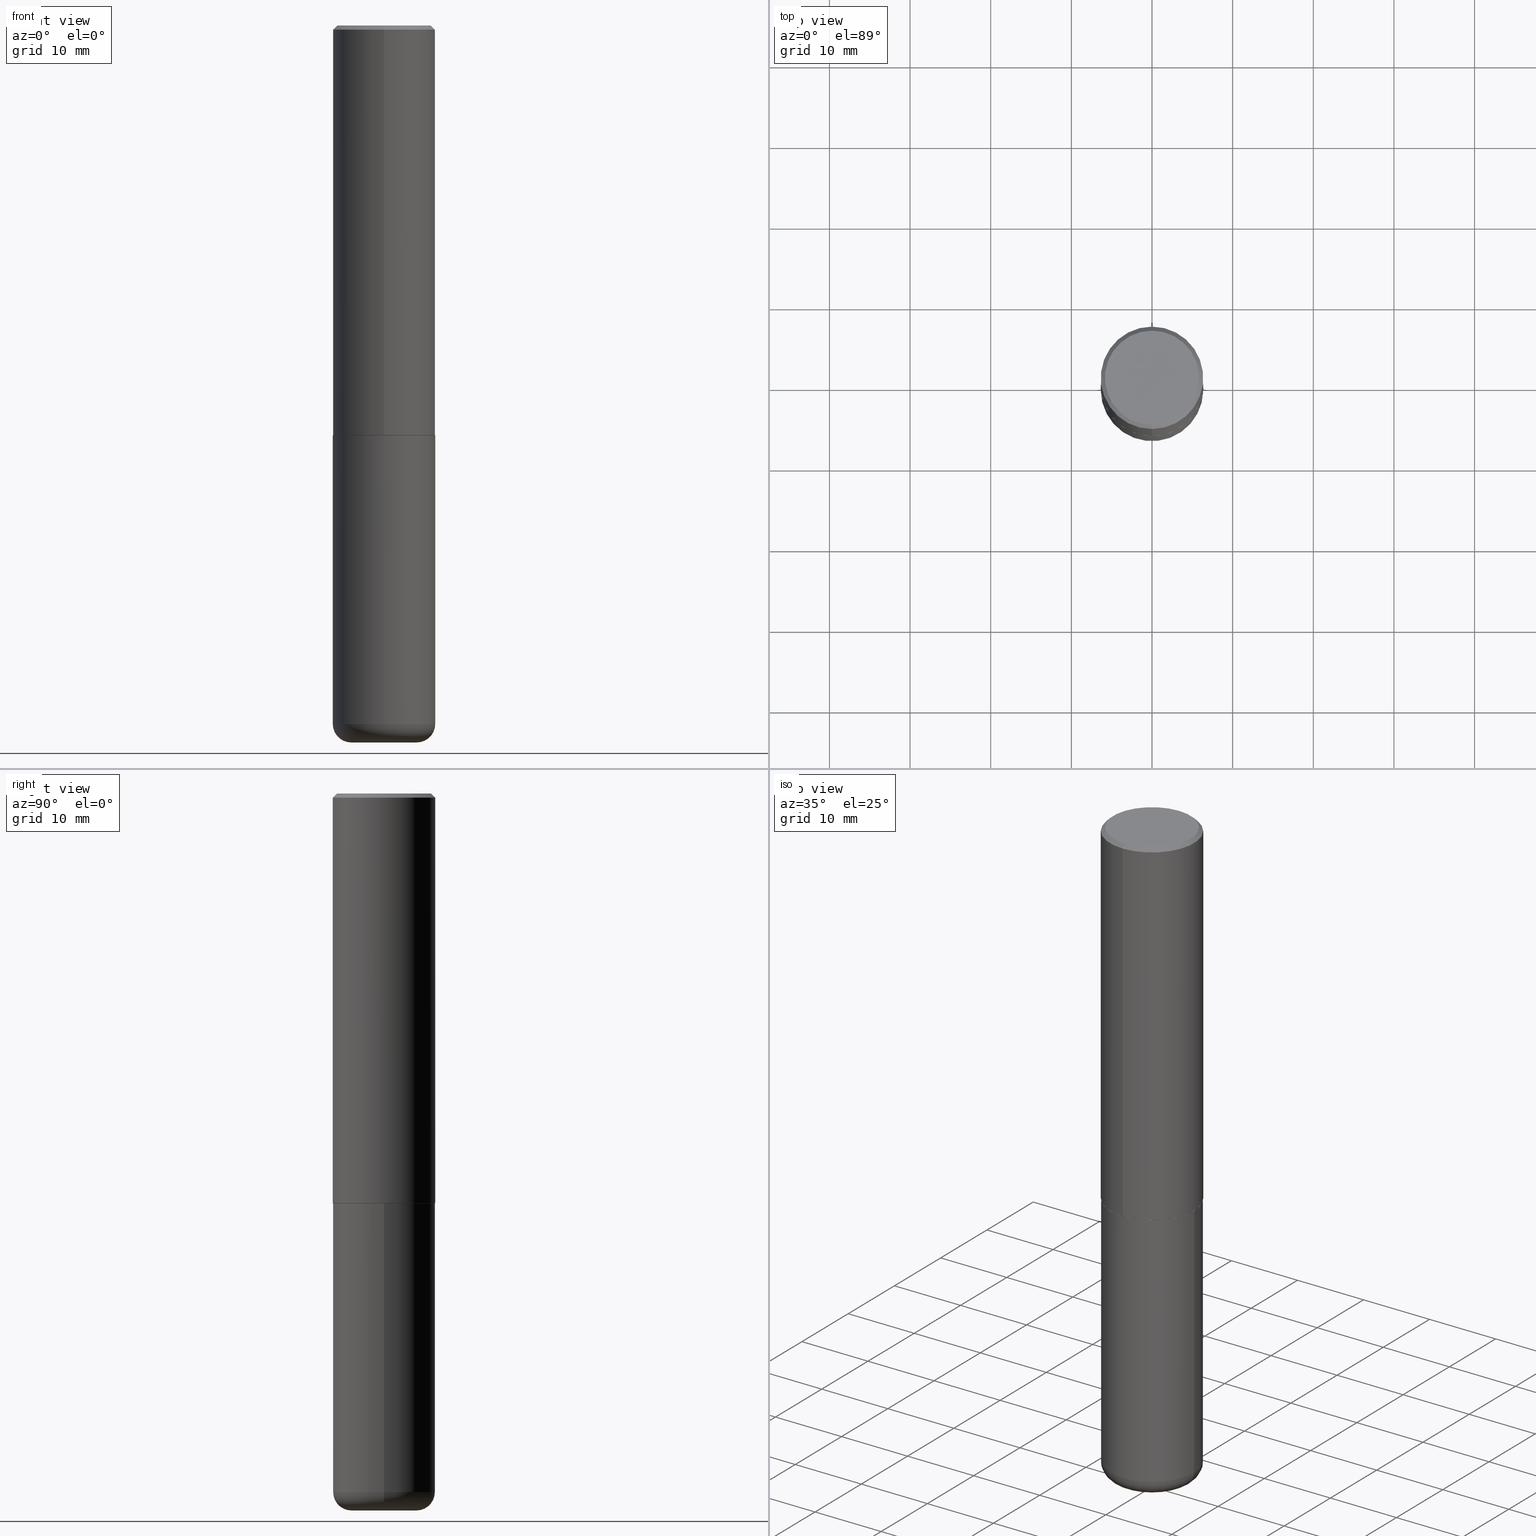
[diagram: canonical four-view strip — front | top / right | iso, engineering-drawing reading convention]
A machine part, canonical four-view strip (front | top / right | iso — engineering-drawing reading convention). The complete STEP part file that produces these views, byte-faithful:
ISO-10303-21;
HEADER;
FILE_DESCRIPTION (( 'STEP AP203' ),
    '1' );
FILE_NAME ('37546.STEP',
    '2024-03-02T03:59:08',
    ( '' ),
    ( '' ),
    'SwSTEP 2.0',
    'SolidWorks 2023',
    '' );
FILE_SCHEMA (( 'CONFIG_CONTROL_DESIGN' ));
ENDSEC;

DATA;
#1 = DIRECTION ( 'NONE',  ( -2.445468806185136597E-29, 3.491481338843145583E-15, 1.000000000000000000 ) ) ;
#2 = VERTEX_POINT ( 'NONE', #410 ) ;
#3 = CONICAL_SURFACE ( 'NONE', #285, 0.2489999999999999991, 0.7853981633975507526 ) ;
#4 = DIRECTION ( 'NONE',  ( -6.982962677686265133E-15, -1.000000000000000000, 3.291383124896702687E-15 ) ) ;
#5 = CC_DESIGN_APPROVAL ( #29, ( #234 ) ) ;
#6 = CARTESIAN_POINT ( 'NONE',  ( -1.715124499442882299E-15, -0.2500000000000000555, -0.01999999999999918510 ) ) ;
#7 = EDGE_CURVE ( 'NONE', #384, #346, #256, .T. ) ;
#8 = ORIENTED_EDGE ( 'NONE', *, *, #231, .T. ) ;
#9 = EDGE_LOOP ( 'NONE', ( #388, #263 ) ) ;
#10 = DIRECTION ( 'NONE',  ( -2.445468806185136597E-29, 3.491481338843145583E-15, 1.000000000000000000 ) ) ;
#11 = CARTESIAN_POINT ( 'NONE',  ( 4.891474366573822799E-29, -6.982194015116654415E-15, -1.999999999999999778 ) ) ;
#12 = PLANE ( 'NONE',  #209 ) ;
#13 = VECTOR ( 'NONE', #157, 39.37007874015748143 ) ;
#14 = ORIENTED_EDGE ( 'NONE', *, *, #206, .T. ) ;
#15 = EDGE_CURVE ( 'NONE', #105, #27, #36, .T. ) ;
#16 = FACE_OUTER_BOUND ( 'NONE', #305, .T. ) ;
#17 = EDGE_LOOP ( 'NONE', ( #414, #401 ) ) ;
#18 = FACE_OUTER_BOUND ( 'NONE', #288, .T. ) ;
#19 = ORIENTED_EDGE ( 'NONE', *, *, #7, .T. ) ;
#20 =( LENGTH_UNIT ( ) NAMED_UNIT ( * ) SI_UNIT ( $, .METRE. ) );
#21 = PRODUCT_DEFINITION ( 'UNKNOWN', '', #234, #188 ) ;
#22 = ORIENTED_EDGE ( 'NONE', *, *, #150, .F. ) ;
#23 = DIRECTION ( 'NONE',  ( -6.982962677686265922E-15, -1.000000000000000000, 3.491097007558327207E-15 ) ) ;
#24 = CALENDAR_DATE ( 2024, 1, 3 ) ;
#25 = CARTESIAN_POINT ( 'NONE',  ( 0.2500000000000000000, -8.728703347107857054E-15, -1.999999999999999778 ) ) ;
#26 = CIRCLE ( 'NONE', #62, 0.2500000000000000555 ) ;
#27 = VERTEX_POINT ( 'NONE', #162 ) ;
#28 = VECTOR ( 'NONE', #163, 39.37007874015748854 ) ;
#29 = APPROVAL ( #245, 'UNSPECIFIED' ) ;
#30 = ORGANIZATION ( 'UNSPECIFIED', 'UNSPECIFIED', '' ) ;
#31 = CIRCLE ( 'NONE', #140, 0.2500000000000000000 ) ;
#32 = CARTESIAN_POINT ( 'NONE',  ( 0.000000000000000000, 0.000000000000000000, 0.000000000000000000 ) ) ;
#33 = FACE_OUTER_BOUND ( 'NONE', #9, .T. ) ;
#34 = CARTESIAN_POINT ( 'NONE',  ( 1.769251412042698169E-15, 0.2489999999999930325, -2.000000000000000444 ) ) ;
#35 = DIRECTION ( 'NONE',  ( -2.445468806185136597E-29, 3.491481338843145583E-15, 1.000000000000000000 ) ) ;
#36 = LINE ( 'NONE', #185, #13 ) ;
#37 = AXIS2_PLACEMENT_3D ( 'NONE', #278, #404, #119 ) ;
#38 = DIRECTION ( 'NONE',  ( 2.445737183286911400E-29, -3.491097007558327602E-15, -1.000000000000000000 ) ) ;
#39 = VERTEX_POINT ( 'NONE', #225 ) ;
#40 = CARTESIAN_POINT ( 'NONE',  ( 6.285415214839433991E-46, -8.971934677910720830E-32, -2.569947113611056727E-17 ) ) ;
#41 = DIRECTION ( 'NONE',  ( -2.445468806185136597E-29, 3.491481338843145583E-15, 1.000000000000000000 ) ) ;
#42 = ADVANCED_FACE ( 'NONE', ( #191 ), #223, .T. ) ;
#43 = UNCERTAINTY_MEASURE_WITH_UNIT (LENGTH_MEASURE( 1.000000000000000082E-05 ), #142, 'distance_accuracy_value', 'NONE');
#44 = ORIENTED_EDGE ( 'NONE', *, *, #159, .T. ) ;
#45 = CARTESIAN_POINT ( 'NONE',  ( -1.738757706743831162E-15, -0.2490000000000069658, -1.999999999999998890 ) ) ;
#46 = DIRECTION ( 'NONE',  ( -1.000000000000000000, 6.982962677686265922E-15, -4.876176775795935793E-29 ) ) ;
#47 = VERTEX_POINT ( 'NONE', #315 ) ;
#48 = DIRECTION ( 'NONE',  ( -2.445737183286911680E-29, 3.491097007558327602E-15, 1.000000000000000000 ) ) ;
#49 = EDGE_CURVE ( 'NONE', #39, #2, #127, .T. ) ;
#50 = ORIENTED_EDGE ( 'NONE', *, *, #172, .F. ) ;
#51 = AXIS2_PLACEMENT_3D ( 'NONE', #409, #156, #317 ) ;
#52 = COORDINATED_UNIVERSAL_TIME_OFFSET ( 5, 0, .BEHIND. ) ;
#53 = ORIENTED_EDGE ( 'NONE', *, *, #181, .F. ) ;
#54 = AXIS2_PLACEMENT_3D ( 'NONE', #101, #381, #198 ) ;
#55 = CARTESIAN_POINT ( 'NONE',  ( 8.339048629091315302E-29, -1.190595136545512608E-14, -3.410000000000000142 ) ) ;
#56 = PERSON_AND_ORGANIZATION ( #68, #30 ) ;
#57 = EDGE_LOOP ( 'NONE', ( #236, #395, #398, #377 ) ) ;
#58 = PLANE ( 'NONE',  #265 ) ;
#59 = ADVANCED_FACE ( 'NONE', ( #33 ), #321, .F. ) ;
#60 = CALENDAR_DATE ( 2024, 1, 3 ) ;
#61 = DIRECTION ( 'NONE',  ( 1.000000000000000000, -6.982962677686266711E-15, 4.876176775795935793E-29 ) ) ;
#62 = AXIS2_PLACEMENT_3D ( 'NONE', #143, #117, #132 ) ;
#63 = PERSON_AND_ORGANIZATION_ROLE ( 'creator' ) ;
#64 = DIRECTION ( 'NONE',  ( -2.445737183286911680E-29, 3.491097007558327602E-15, 1.000000000000000000 ) ) ;
#65 = DIRECTION ( 'NONE',  ( 2.438088387897960049E-29, -3.491481338843145188E-15, -1.000000000000000000 ) ) ;
#66 = DIRECTION ( 'NONE',  ( -2.445468806185136597E-29, 3.491481338843145583E-15, 1.000000000000000000 ) ) ;
#67 = FACE_OUTER_BOUND ( 'NONE', #109, .T. ) ;
#68 = PERSON ( 'UNSPECIFIED', 'UNSPECIFIED', 'UNSPECIFIED', ('UNSPECIFIED'), ('UNSPECIFIED'), ('UNSPECIFIED') ) ;
#69 = EDGE_CURVE ( 'NONE', #277, #27, #31, .T. ) ;
#70 = AXIS2_PLACEMENT_3D ( 'NONE', #275, #1, #193 ) ;
#71 = ORIENTED_EDGE ( 'NONE', *, *, #15, .F. ) ;
#72 = FACE_OUTER_BOUND ( 'NONE', #294, .T. ) ;
#73 = ORIENTED_EDGE ( 'NONE', *, *, #131, .T. ) ;
#74 = CIRCLE ( 'NONE', #175, 0.08999999999999964972 ) ;
#75 = FACE_OUTER_BOUND ( 'NONE', #297, .T. ) ;
#76 = EDGE_CURVE ( 'NONE', #384, #338, #226, .T. ) ;
#77 = ORIENTED_EDGE ( 'NONE', *, *, #412, .T. ) ;
#78 = EDGE_LOOP ( 'NONE', ( #303, #406, #50, #151 ) ) ;
#79 = LINE ( 'NONE', #146, #108 ) ;
#80 = AXIS2_PLACEMENT_3D ( 'NONE', #137, #48, #107 ) ;
#81 = APPROVAL_PERSON_ORGANIZATION ( #237, #362, #364 ) ;
#82 = CC_DESIGN_SECURITY_CLASSIFICATION ( #387, ( #234 ) ) ;
#83 = CARTESIAN_POINT ( 'NONE',  ( 0.000000000000000000, 0.000000000000000000, 0.000000000000000000 ) ) ;
#84 = PERSON_AND_ORGANIZATION ( #68, #30 ) ;
#85 = DIRECTION ( 'NONE',  ( -2.445737183286911680E-29, 3.491097007558327602E-15, 1.000000000000000000 ) ) ;
#86 = APPROVAL ( #122, 'UNSPECIFIED' ) ;
#87 = PERSON_AND_ORGANIZATION ( #68, #30 ) ;
#88 = DIRECTION ( 'NONE',  ( -6.982962677686266711E-15, -1.000000000000000000, 3.491097007558327996E-15 ) ) ;
#89 = EDGE_LOOP ( 'NONE', ( #233, #44, #136, #144 ) ) ;
#90 = DATE_AND_TIME ( #372, #291 ) ;
#91 = VECTOR ( 'NONE', #218, 39.37007874015748143 ) ;
#92 = DATE_TIME_ROLE ( 'creation_date' ) ;
#93 = FACE_OUTER_BOUND ( 'NONE', #166, .T. ) ;
#94 = PERSON_AND_ORGANIZATION ( #68, #30 ) ;
#95 = FACE_OUTER_BOUND ( 'NONE', #169, .T. ) ;
#96 = DIRECTION ( 'NONE',  ( -2.445737183286911680E-29, 3.491097007558327602E-15, 1.000000000000000000 ) ) ;
#97 = CARTESIAN_POINT ( 'NONE',  ( 4.891474366573836672E-31, -6.982194015116674235E-17, -0.02000000000000005593 ) ) ;
#98 = AXIS2_PLACEMENT_3D ( 'NONE', #376, #248, #307 ) ;
#99 = DIRECTION ( 'NONE',  ( -2.445737183286911680E-29, 3.491097007558327602E-15, 1.000000000000000000 ) ) ;
#100 = ADVANCED_FACE ( 'NONE', ( #67 ), #417, .T. ) ;
#101 = CARTESIAN_POINT ( 'NONE',  ( 4.889028629390535480E-29, -6.978702918109095527E-15, -1.998999999999999666 ) ) ;
#102 = VECTOR ( 'NONE', #96, 39.37007874015748143 ) ;
#103 = ADVANCED_FACE ( 'NONE', ( #75 ), #361, .T. ) ;
#104 = LINE ( 'NONE', #282, #91 ) ;
#105 = VERTEX_POINT ( 'NONE', #176 ) ;
#106 = CIRCLE ( 'NONE', #333, 0.2500000000000000000 ) ;
#107 = DIRECTION ( 'NONE',  ( -6.982962677686265133E-15, -1.000000000000000000, 3.291383124896702687E-15 ) ) ;
#108 = VECTOR ( 'NONE', #273, 39.37007874015748143 ) ;
#109 = EDGE_LOOP ( 'NONE', ( #22, #116 ) ) ;
#110 = PERSON_AND_ORGANIZATION_ROLE ( 'design_owner' ) ;
#111 = APPLICATION_CONTEXT ( 'configuration controlled 3d designs of mechanical parts and assemblies' ) ;
#112 = CC_DESIGN_DATE_AND_TIME_ASSIGNMENT ( #408, #374, ( #387 ) ) ;
#113 = VERTEX_POINT ( 'NONE', #276 ) ;
#114 = DATE_AND_TIME ( #396, #327 ) ;
#115 = PERSON_AND_ORGANIZATION ( #68, #30 ) ;
#116 = ORIENTED_EDGE ( 'NONE', *, *, #402, .F. ) ;
#117 = DIRECTION ( 'NONE',  ( -2.445468806185136597E-29, 3.491481338843145583E-15, 1.000000000000000000 ) ) ;
#118 = CIRCLE ( 'NONE', #130, 0.2500000000000000555 ) ;
#119 = DIRECTION ( 'NONE',  ( -6.982962677686265133E-15, -1.000000000000000000, 3.291383124896702687E-15 ) ) ;
#120 = CARTESIAN_POINT ( 'NONE',  ( 0.000000000000000000, 0.000000000000000000, 0.000000000000000000 ) ) ;
#121 = VECTOR ( 'NONE', #378, 39.37007874015748854 ) ;
#122 = APPROVAL_STATUS ( 'not_yet_approved' ) ;
#123 = DIRECTION ( 'NONE',  ( -2.445737183286911680E-29, 3.491097007558327602E-15, 1.000000000000000000 ) ) ;
#124 = DIRECTION ( 'NONE',  ( 1.000000000000000000, -6.982962677686266711E-15, 4.876176775795935793E-29 ) ) ;
#125 = SHAPE_DEFINITION_REPRESENTATION ( #403, #353 ) ;
#126 = DIRECTION ( 'NONE',  ( 6.982962677686265922E-15, 1.000000000000000000, -3.483106191921935554E-15 ) ) ;
#127 = LINE ( 'NONE', #249, #121 ) ;
#128 = PERSON_AND_ORGANIZATION ( #68, #30 ) ;
#129 = ADVANCED_FACE ( 'NONE', ( #16 ), #254, .T. ) ;
#130 = AXIS2_PLACEMENT_3D ( 'NONE', #219, #41, #310 ) ;
#131 = EDGE_CURVE ( 'NONE', #239, #369, #74, .T. ) ;
#132 = DIRECTION ( 'NONE',  ( 1.000000000000000000, -6.982962677686269077E-15, 0.000000000000000000 ) ) ;
#133 = FACE_OUTER_BOUND ( 'NONE', #89, .T. ) ;
#134 = ORIENTED_EDGE ( 'NONE', *, *, #351, .T. ) ;
#135 = LINE ( 'NONE', #34, #215 ) ;
#136 = ORIENTED_EDGE ( 'NONE', *, *, #172, .T. ) ;
#137 = CARTESIAN_POINT ( 'NONE',  ( 4.891474366573822799E-29, -6.982194015116654415E-15, -1.999999999999999778 ) ) ;
#138 = ADVANCED_FACE ( 'NONE', ( #18 ), #304, .T. ) ;
#139 = ORIENTED_EDGE ( 'NONE', *, *, #159, .F. ) ;
#140 = AXIS2_PLACEMENT_3D ( 'NONE', #415, #66, #194 ) ;
#141 = CONICAL_SURFACE ( 'NONE', #37, 0.2489999999999999991, 0.7853981633975507526 ) ;
#142 =( CONVERSION_BASED_UNIT ( 'INCH', #145 ) LENGTH_UNIT ( ) NAMED_UNIT ( #170 ) );
#143 = CARTESIAN_POINT ( 'NONE',  ( 8.339048629091315302E-29, -1.190595136545512608E-14, -3.410000000000000142 ) ) ;
#144 = ORIENTED_EDGE ( 'NONE', *, *, #49, .F. ) ;
#145 = LENGTH_MEASURE_WITH_UNIT ( LENGTH_MEASURE( 0.02539999999999999897 ), #20 );
#146 = CARTESIAN_POINT ( 'NONE',  ( 0.2500000000000000000, -1.745740669421566678E-15, 1.219044193948983948E-29 ) ) ;
#147 = CC_DESIGN_PERSON_AND_ORGANIZATION_ASSIGNMENT ( #94, #341, ( #387 ) ) ;
#148 = CARTESIAN_POINT ( 'NONE',  ( 0.2499999999999998612, -1.365169203487669276E-14, -3.410000000000000142 ) ) ;
#149 = CLOSED_SHELL ( 'NONE', ( #302, #244, #286, #262, #103, #279, #308, #59 ) ) ;
#150 = EDGE_CURVE ( 'NONE', #239, #371, #296, .T. ) ;
#151 = ORIENTED_EDGE ( 'NONE', *, *, #7, .F. ) ;
#152 = COORDINATED_UNIVERSAL_TIME_OFFSET ( 5, 0, .BEHIND. ) ;
#153 = FACE_OUTER_BOUND ( 'NONE', #269, .T. ) ;
#154 = PERSON_AND_ORGANIZATION ( #68, #30 ) ;
#155 = CIRCLE ( 'NONE', #319, 0.2299999999999999822 ) ;
#156 = DIRECTION ( 'NONE',  ( 2.445737183286911680E-29, -3.491097007558327602E-15, -1.000000000000000000 ) ) ;
#157 = DIRECTION ( 'NONE',  ( -2.445468806185136877E-29, 3.491481338843145188E-15, 1.000000000000000000 ) ) ;
#158 = DIRECTION ( 'NONE',  ( -6.982962677686266711E-15, -1.000000000000000000, 3.491097007558327996E-15 ) ) ;
#159 = EDGE_CURVE ( 'NONE', #266, #346, #252, .T. ) ;
#160 = CARTESIAN_POINT ( 'NONE',  ( 4.891474366573822799E-29, -6.982194015116654415E-15, -1.999999999999999778 ) ) ;
#161 = CONICAL_SURFACE ( 'NONE', #171, 0.2500000000000000000, 0.7853981633974481680 ) ;
#162 = CARTESIAN_POINT ( 'NONE',  ( -0.2500000000000000000, -7.668100182170457762E-15, -1.999999999999999778 ) ) ;
#163 = DIRECTION ( 'NONE',  ( -4.851104656540962697E-15, -0.7071067811865497932, -0.7071067811865451302 ) ) ;
#164 = CIRCLE ( 'NONE', #189, 0.2299999999999999822 ) ;
#165 = AXIS2_PLACEMENT_3D ( 'NONE', #241, #330, #243 ) ;
#166 = EDGE_LOOP ( 'NONE', ( #217, #271 ) ) ;
#167 = DIRECTION ( 'NONE',  ( -2.445737183286911400E-29, 3.491097007558327602E-15, 1.000000000000000000 ) ) ;
#168 = EDGE_CURVE ( 'NONE', #338, #2, #104, .T. ) ;
#169 = EDGE_LOOP ( 'NONE', ( #71, #134, #77, #204 ) ) ;
#170 = DIMENSIONAL_EXPONENTS ( 1.000000000000000000, 0.000000000000000000, 0.000000000000000000, 0.000000000000000000, 0.000000000000000000, 0.000000000000000000, 0.000000000000000000 ) ;
#171 = AXIS2_PLACEMENT_3D ( 'NONE', #413, #324, #126 ) ;
#172 = EDGE_CURVE ( 'NONE', #346, #2, #106, .T. ) ;
#173 = ORIENTED_EDGE ( 'NONE', *, *, #76, .F. ) ;
#174 = DIRECTION ( 'NONE',  ( -6.982962677686265922E-15, -1.000000000000000000, 3.491097007558327602E-15 ) ) ;
#175 = AXIS2_PLACEMENT_3D ( 'NONE', #268, #337, #334 ) ;
#176 = CARTESIAN_POINT ( 'NONE',  ( -0.2499999999999998612, -1.012959452605487719E-14, -3.410000000000000142 ) ) ;
#177 = ORIENTED_EDGE ( 'NONE', *, *, #342, .T. ) ;
#178 = COORDINATED_UNIVERSAL_TIME_OFFSET ( 5, 0, .BEHIND. ) ;
#179 = CARTESIAN_POINT ( 'NONE',  ( 1.776356839400276103E-15, 0.2499999999999933109, -1.999000000000000554 ) ) ;
#180 = MANIFOLD_SOLID_BREP ( 'Body-Move/Copy2[2]', #149 ) ;
#181 = EDGE_CURVE ( 'NONE', #369, #105, #118, .T. ) ;
#182 = CYLINDRICAL_SURFACE ( 'NONE', #281, 0.2500000000000001110 ) ;
#183 = ORIENTED_EDGE ( 'NONE', *, *, #274, .T. ) ;
#184 = DIRECTION ( 'NONE',  ( -6.982962677686265133E-15, -1.000000000000000000, 3.291383124896702687E-15 ) ) ;
#185 = CARTESIAN_POINT ( 'NONE',  ( -0.2500000000000000000, 1.776356839400250465E-15, -1.229733772563726445E-29 ) ) ;
#186 = DIRECTION ( 'NONE',  ( -4.937700262165053702E-15, -0.7071067811866175168, 0.7071067811864775177 ) ) ;
#187 = APPROVAL_DATE_TIME ( #306, #86 ) ;
#188 = DESIGN_CONTEXT ( 'detailed design', #111, 'design' ) ;
#189 = AXIS2_PLACEMENT_3D ( 'NONE', #190, #283, #23 ) ;
#190 = CARTESIAN_POINT ( 'NONE',  ( 6.285415214839433991E-46, -8.971934677910720830E-32, -2.569947113611056727E-17 ) ) ;
#191 = FACE_OUTER_BOUND ( 'NONE', #57, .T. ) ;
#192 = CC_DESIGN_PERSON_AND_ORGANIZATION_ASSIGNMENT ( #154, #63, ( #234 ) ) ;
#193 = DIRECTION ( 'NONE',  ( 1.000000000000000000, -6.982962677686259611E-15, 0.000000000000000000 ) ) ;
#194 = DIRECTION ( 'NONE',  ( 1.000000000000000000, -6.982962677686266711E-15, 0.000000000000000000 ) ) ;
#195 = CARTESIAN_POINT ( 'NONE',  ( -1.745740669421567467E-15, -0.2500000000000001110, 8.727742518895823935E-16 ) ) ;
#196 = AXIS2_PLACEMENT_3D ( 'NONE', #322, #325, #46 ) ;
#197 = CLOSED_SHELL ( 'NONE', ( #42, #129, #335, #201, #138, #100 ) ) ;
#198 = DIRECTION ( 'NONE',  ( -6.982962677686265922E-15, -1.000000000000000000, 3.278217592397112312E-15 ) ) ;
#199 = CIRCLE ( 'NONE', #54, 0.2500000000000002776 ) ;
#200 = ORIENTED_EDGE ( 'NONE', *, *, #342, .F. ) ;
#201 = ADVANCED_FACE ( 'NONE', ( #95 ), #259, .T. ) ;
#202 = ORIENTED_EDGE ( 'NONE', *, *, #231, .F. ) ;
#203 = MECHANICAL_CONTEXT ( 'NONE', #258, 'mechanical' ) ;
#204 = ORIENTED_EDGE ( 'NONE', *, *, #385, .F. ) ;
#205 = DIRECTION ( 'NONE',  ( -2.445468806185136597E-29, 3.491481338843145583E-15, 1.000000000000000000 ) ) ;
#206 = EDGE_CURVE ( 'NONE', #113, #47, #272, .T. ) ;
#207 = ORIENTED_EDGE ( 'NONE', *, *, #257, .F. ) ;
#208 = VECTOR ( 'NONE', #186, 39.37007874015748143 ) ;
#209 = AXIS2_PLACEMENT_3D ( 'NONE', #300, #65, #329 ) ;
#210 = PRODUCT ( '37546', '37546', '', ( #203 ) ) ;
#211 = APPROVAL_STATUS ( 'not_yet_approved' ) ;
#212 = DIRECTION ( 'NONE',  ( -2.445468806185136597E-29, 3.491481338843145583E-15, 1.000000000000000000 ) ) ;
#213 = PERSON_AND_ORGANIZATION_ROLE ( 'creator' ) ;
#214 = APPROVAL_ROLE ( '' ) ;
#215 = VECTOR ( 'NONE', #287, 39.37007874015748143 ) ;
#216 = APPROVAL_PERSON_ORGANIZATION ( #128, #86, #250 ) ;
#217 = ORIENTED_EDGE ( 'NONE', *, *, #206, .F. ) ;
#218 = DIRECTION ( 'NONE',  ( -2.445737183286911680E-29, 3.491097007558327602E-15, 1.000000000000000000 ) ) ;
#219 = CARTESIAN_POINT ( 'NONE',  ( 8.339048629091315302E-29, -1.190595136545512608E-14, -3.410000000000000142 ) ) ;
#220 = SECURITY_CLASSIFICATION_LEVEL ( 'unclassified' ) ;
#221 = CC_DESIGN_APPROVAL ( #86, ( #387 ) ) ;
#222 = CARTESIAN_POINT ( 'NONE',  ( 4.891474366573836672E-31, -6.982194015116674235E-17, -0.02000000000000005593 ) ) ;
#223 = CYLINDRICAL_SURFACE ( 'NONE', #356, 0.2500000000000000000 ) ;
#224 = EDGE_CURVE ( 'NONE', #338, #384, #199, .T. ) ;
#225 = CARTESIAN_POINT ( 'NONE',  ( 1.675911042644703774E-15, 0.2299999999999999822, -8.286517828745257562E-16 ) ) ;
#226 = CIRCLE ( 'NONE', #382, 0.2500000000000002776 ) ;
#227 = LOCAL_TIME ( 22, 59, 8.000000000000000000, #348 ) ;
#228 = DIRECTION ( 'NONE',  ( -2.445737183286911680E-29, 3.491097007558327602E-15, 1.000000000000000000 ) ) ;
#229 = ORIENTED_EDGE ( 'NONE', *, *, #49, .T. ) ;
#230 = FACE_OUTER_BOUND ( 'NONE', #78, .T. ) ;
#231 = EDGE_CURVE ( 'NONE', #371, #105, #354, .T. ) ;
#232 = ORIENTED_EDGE ( 'NONE', *, *, #131, .F. ) ;
#233 = ORIENTED_EDGE ( 'NONE', *, *, #331, .F. ) ;
#234 = PRODUCT_DEFINITION_FORMATION_WITH_SPECIFIED_SOURCE ( 'ANY', '', #210, .NOT_KNOWN. ) ;
#235 = CARTESIAN_POINT ( 'NONE',  ( 8.559140821647976968E-29, -1.222018468595100619E-14, -3.499999999999999112 ) ) ;
#236 = ORIENTED_EDGE ( 'NONE', *, *, #181, .T. ) ;
#237 = PERSON_AND_ORGANIZATION ( #68, #30 ) ;
#238 = CARTESIAN_POINT ( 'NONE',  ( -1.745740669421519543E-15, -0.2500000000000072164, -1.998999999999998778 ) ) ;
#239 = VERTEX_POINT ( 'NONE', #383 ) ;
#240 = AXIS2_PLACEMENT_3D ( 'NONE', #299, #10, #336 ) ;
#241 = CARTESIAN_POINT ( 'NONE',  ( 0.000000000000000000, 0.000000000000000000, 0.000000000000000000 ) ) ;
#242 = ORIENTED_EDGE ( 'NONE', *, *, #355, .T. ) ;
#243 = DIRECTION ( 'NONE',  ( 1.000000000000000000, 0.000000000000000000, 0.000000000000000000 ) ) ;
#244 = ADVANCED_FACE ( 'NONE', ( #230 ), #182, .T. ) ;
#245 = APPROVAL_STATUS ( 'not_yet_approved' ) ;
#246 = EDGE_LOOP ( 'NONE', ( #14, #328, #173, #200 ) ) ;
#247 = AXIS2_PLACEMENT_3D ( 'NONE', #393, #212, #400 ) ;
#248 = DIRECTION ( 'NONE',  ( 7.105427357601001859E-15, 1.000000000000000000, -3.491481338843145583E-15 ) ) ;
#249 = CARTESIAN_POINT ( 'NONE',  ( 1.745740669421566875E-15, 0.2499999999999999167, -0.02000000000000092676 ) ) ;
#250 = APPROVAL_ROLE ( '' ) ;
#251 = CC_DESIGN_DATE_AND_TIME_ASSIGNMENT ( #399, #92, ( #21 ) ) ;
#252 = LINE ( 'NONE', #314, #28 ) ;
#253 = CARTESIAN_POINT ( 'NONE',  ( -1.646519519465166968E-15, -0.2299999999999999822, 7.772528406023046093E-16 ) ) ;
#254 = TOROIDAL_SURFACE ( 'NONE', #247, 0.1600000000000000033, 0.08999999999999967748 ) ;
#255 = LINE ( 'NONE', #45, #208 ) ;
#256 = LINE ( 'NONE', #195, #102 ) ;
#257 = EDGE_CURVE ( 'NONE', #39, #266, #164, .T. ) ;
#258 = APPLICATION_CONTEXT ( 'configuration controlled 3d designs of mechanical parts and assemblies' ) ;
#259 = CYLINDRICAL_SURFACE ( 'NONE', #326, 0.2500000000000000000 ) ;
#260 = CIRCLE ( 'NONE', #80, 0.2489999999999999991 ) ;
#261 = FACE_OUTER_BOUND ( 'NONE', #246, .T. ) ;
#262 = ADVANCED_FACE ( 'NONE', ( #153 ), #161, .T. ) ;
#263 = ORIENTED_EDGE ( 'NONE', *, *, #331, .T. ) ;
#264 = DIRECTION ( 'NONE',  ( -2.445737183286911680E-29, 3.491097007558327602E-15, 1.000000000000000000 ) ) ;
#265 = AXIS2_PLACEMENT_3D ( 'NONE', #11, #167, #174 ) ;
#266 = VERTEX_POINT ( 'NONE', #253 ) ;
#267 =( NAMED_UNIT ( * ) SI_UNIT ( $, .STERADIAN. ) SOLID_ANGLE_UNIT ( ) );
#268 = CARTESIAN_POINT ( 'NONE',  ( 0.1600000000000000033, -1.302322539388492780E-14, -3.410000000000000142 ) ) ;
#269 = EDGE_LOOP ( 'NONE', ( #139, #207, #229, #183 ) ) ;
#270 =( NAMED_UNIT ( * ) PLANE_ANGLE_UNIT ( ) SI_UNIT ( $, .RADIAN. ) );
#271 = ORIENTED_EDGE ( 'NONE', *, *, #355, .F. ) ;
#272 = CIRCLE ( 'NONE', #416, 0.2489999999999999991 ) ;
#273 = DIRECTION ( 'NONE',  ( -2.445468806185136877E-29, 3.491481338843145188E-15, 1.000000000000000000 ) ) ;
#274 = EDGE_CURVE ( 'NONE', #2, #346, #407, .T. ) ;
#275 = CARTESIAN_POINT ( 'NONE',  ( 8.559140821647976968E-29, -1.222018468595100619E-14, -3.499999999999999112 ) ) ;
#276 = CARTESIAN_POINT ( 'NONE',  ( -1.738757706743831162E-15, -0.2490000000000069658, -1.999999999999998890 ) ) ;
#277 = VERTEX_POINT ( 'NONE', #25 ) ;
#278 = CARTESIAN_POINT ( 'NONE',  ( 4.891474366573822799E-29, -6.982194015116654415E-15, -1.999999999999999778 ) ) ;
#279 = ADVANCED_FACE ( 'NONE', ( #72 ), #3, .T. ) ;
#280 = APPROVAL_DATE_TIME ( #90, #29 ) ;
#281 = AXIS2_PLACEMENT_3D ( 'NONE', #347, #228, #158 ) ;
#282 = CARTESIAN_POINT ( 'NONE',  ( 1.776356839400251254E-15, 0.2500000000000001110, -8.727742518895823935E-16 ) ) ;
#283 = DIRECTION ( 'NONE',  ( -2.445737183286911680E-29, 3.491097007558327602E-15, 1.000000000000000000 ) ) ;
#284 = CARTESIAN_POINT ( 'NONE',  ( 1.606081415867841067E-15, 0.2299999999999999822, -8.158020473064706174E-16 ) ) ;
#285 = AXIS2_PLACEMENT_3D ( 'NONE', #289, #64, #4 ) ;
#286 = ADVANCED_FACE ( 'NONE', ( #133 ), #386, .T. ) ;
#287 = DIRECTION ( 'NONE',  ( 5.024295867788576727E-15, 0.7071067811866224018, 0.7071067811864726327 ) ) ;
#288 = EDGE_LOOP ( 'NONE', ( #202, #363, #73, #332 ) ) ;
#289 = CARTESIAN_POINT ( 'NONE',  ( 4.891474366573822799E-29, -6.982194015116654415E-15, -1.999999999999999778 ) ) ;
#290 = CIRCLE ( 'NONE', #392, 0.1600000000000000033 ) ;
#291 = LOCAL_TIME ( 22, 59, 8.000000000000000000, #152 ) ;
#292 = ORIENTED_EDGE ( 'NONE', *, *, #224, .F. ) ;
#293 = EDGE_CURVE ( 'NONE', #47, #338, #135, .T. ) ;
#294 = EDGE_LOOP ( 'NONE', ( #357, #242, #177, #292 ) ) ;
#295 = APPLICATION_PROTOCOL_DEFINITION ( 'international standard', 'config_control_design', 1994, #111 ) ;
#296 = CIRCLE ( 'NONE', #70, 0.1600000000000000033 ) ;
#297 = EDGE_LOOP ( 'NONE', ( #343, #390, #19, #309 ) ) ;
#298 = MANIFOLD_SOLID_BREP ( 'Body-Move/Copy2[1]', #197 ) ;
#299 = CARTESIAN_POINT ( 'NONE',  ( 4.890937612370272633E-29, -6.982962677686290376E-15, -1.999999999999999778 ) ) ;
#300 = CARTESIAN_POINT ( 'NONE',  ( 4.890937612370272633E-29, -6.982962677686290376E-15, -1.999999999999999778 ) ) ;
#301 = CARTESIAN_POINT ( 'NONE',  ( -0.1600000000000000033, -1.060645541739486182E-14, -3.499999999999999112 ) ) ;
#302 = ADVANCED_FACE ( 'NONE', ( #261 ), #141, .T. ) ;
#303 = ORIENTED_EDGE ( 'NONE', *, *, #76, .T. ) ;
#304 = TOROIDAL_SURFACE ( 'NONE', #339, 0.1600000000000000033, 0.08999999999999967748 ) ;
#305 = EDGE_LOOP ( 'NONE', ( #359, #8, #53, #232 ) ) ;
#306 = DATE_AND_TIME ( #316, #227 ) ;
#307 = DIRECTION ( 'NONE',  ( -1.000000000000000000, 7.105427357600996337E-15, 0.000000000000000000 ) ) ;
#308 = ADVANCED_FACE ( 'NONE', ( #93 ), #58, .F. ) ;
#309 = ORIENTED_EDGE ( 'NONE', *, *, #274, .F. ) ;
#310 = DIRECTION ( 'NONE',  ( 1.000000000000000000, -6.982962677686269077E-15, 0.000000000000000000 ) ) ;
#311 = PERSON_AND_ORGANIZATION_ROLE ( 'design_supplier' ) ;
#312 = CIRCLE ( 'NONE', #240, 0.2500000000000000000 ) ;
#313 = APPROVAL_PERSON_ORGANIZATION ( #115, #29, #214 ) ;
#314 = CARTESIAN_POINT ( 'NONE',  ( -1.715124499442882299E-15, -0.2500000000000000555, -0.01999999999999918510 ) ) ;
#315 = CARTESIAN_POINT ( 'NONE',  ( 1.772804125721499659E-15, 0.2489999999999930325, -2.000000000000000444 ) ) ;
#316 = CALENDAR_DATE ( 2024, 1, 3 ) ;
#317 = DIRECTION ( 'NONE',  ( 6.982962677686265922E-15, 1.000000000000000000, -3.483106191921935554E-15 ) ) ;
#318 = CARTESIAN_POINT ( 'NONE',  ( 4.889028629390535480E-29, -6.978702918109095527E-15, -1.998999999999999666 ) ) ;
#319 = AXIS2_PLACEMENT_3D ( 'NONE', #40, #264, #344 ) ;
#320 = CC_DESIGN_APPROVAL ( #362, ( #21 ) ) ;
#321 = PLANE ( 'NONE',  #405 ) ;
#322 = CARTESIAN_POINT ( 'NONE',  ( 1.690506257577845460E-28, -2.683497136698531760E-16, -3.499999999999999112 ) ) ;
#323 = CC_DESIGN_PERSON_AND_ORGANIZATION_ASSIGNMENT ( #87, #213, ( #21 ) ) ;
#324 = DIRECTION ( 'NONE',  ( 2.445737183286911680E-29, -3.491097007558327602E-15, -1.000000000000000000 ) ) ;
#325 = DIRECTION ( 'NONE',  ( 2.438088387897960049E-29, -3.491481338843145188E-15, -1.000000000000000000 ) ) ;
#326 = AXIS2_PLACEMENT_3D ( 'NONE', #32, #360, #61 ) ;
#327 = LOCAL_TIME ( 22, 59, 8.000000000000000000, #52 ) ;
#328 = ORIENTED_EDGE ( 'NONE', *, *, #293, .T. ) ;
#329 = DIRECTION ( 'NONE',  ( -1.000000000000000000, 6.982962677686265922E-15, -4.876176775795935793E-29 ) ) ;
#330 = DIRECTION ( 'NONE',  ( 0.000000000000000000, 0.000000000000000000, 1.000000000000000000 ) ) ;
#331 = EDGE_CURVE ( 'NONE', #266, #39, #155, .T. ) ;
#332 = ORIENTED_EDGE ( 'NONE', *, *, #351, .F. ) ;
#333 = AXIS2_PLACEMENT_3D ( 'NONE', #97, #375, #358 ) ;
#334 = DIRECTION ( 'NONE',  ( 1.000000000000000000, -6.982962677686273810E-15, 0.000000000000000000 ) ) ;
#335 = ADVANCED_FACE ( 'NONE', ( #379 ), #12, .F. ) ;
#336 = DIRECTION ( 'NONE',  ( 1.000000000000000000, -6.982962677686266711E-15, 0.000000000000000000 ) ) ;
#337 = DIRECTION ( 'NONE',  ( -6.982962677686266711E-15, -1.000000000000000000, 3.491481338843145583E-15 ) ) ;
#338 = VERTEX_POINT ( 'NONE', #179 ) ;
#339 = AXIS2_PLACEMENT_3D ( 'NONE', #55, #373, #397 ) ;
#340 =( GEOMETRIC_REPRESENTATION_CONTEXT ( 3 ) GLOBAL_UNCERTAINTY_ASSIGNED_CONTEXT ( ( #43 ) ) GLOBAL_UNIT_ASSIGNED_CONTEXT ( ( #142, #270, #267 ) ) REPRESENTATION_CONTEXT ( 'NONE', 'WORKASPACE' ) );
#341 = PERSON_AND_ORGANIZATION_ROLE ( 'classification_officer' ) ;
#342 = EDGE_CURVE ( 'NONE', #113, #384, #255, .T. ) ;
#343 = ORIENTED_EDGE ( 'NONE', *, *, #168, .F. ) ;
#344 = DIRECTION ( 'NONE',  ( -6.982962677686265922E-15, -1.000000000000000000, 3.491097007558327207E-15 ) ) ;
#345 = DIRECTION ( 'NONE',  ( -2.445737183286911680E-29, 3.491097007558327602E-15, 1.000000000000000000 ) ) ;
#346 = VERTEX_POINT ( 'NONE', #6 ) ;
#347 = CARTESIAN_POINT ( 'NONE',  ( 0.000000000000000000, 0.000000000000000000, 0.000000000000000000 ) ) ;
#348 = COORDINATED_UNIVERSAL_TIME_OFFSET ( 5, 0, .BEHIND. ) ;
#349 = DIRECTION ( 'NONE',  ( -6.982962677686265922E-15, -1.000000000000000000, 3.483106191921935554E-15 ) ) ;
#350 = DIRECTION ( 'NONE',  ( 6.982962677686265922E-15, 1.000000000000000000, -3.491097007558327602E-15 ) ) ;
#351 = EDGE_CURVE ( 'NONE', #105, #369, #26, .T. ) ;
#352 = DIRECTION ( 'NONE',  ( -6.982962677686265922E-15, -1.000000000000000000, 3.278217592397112312E-15 ) ) ;
#353 = ADVANCED_BREP_SHAPE_REPRESENTATION ( '37546', ( #298, #180, #165 ), #340 ) ;
#354 = CIRCLE ( 'NONE', #98, 0.08999999999999964972 ) ;
#355 = EDGE_CURVE ( 'NONE', #47, #113, #260, .T. ) ;
#356 = AXIS2_PLACEMENT_3D ( 'NONE', #120, #35, #124 ) ;
#357 = ORIENTED_EDGE ( 'NONE', *, *, #293, .F. ) ;
#358 = DIRECTION ( 'NONE',  ( -6.982962677686265922E-15, -1.000000000000000000, 3.483106191921935554E-15 ) ) ;
#359 = ORIENTED_EDGE ( 'NONE', *, *, #150, .T. ) ;
#360 = DIRECTION ( 'NONE',  ( -2.445468806185136597E-29, 3.491481338843145583E-15, 1.000000000000000000 ) ) ;
#361 = CYLINDRICAL_SURFACE ( 'NONE', #380, 0.2500000000000001110 ) ;
#362 = APPROVAL ( #211, 'UNSPECIFIED' ) ;
#363 = ORIENTED_EDGE ( 'NONE', *, *, #402, .T. ) ;
#364 = APPROVAL_ROLE ( '' ) ;
#365 = DIRECTION ( 'NONE',  ( 1.000000000000000000, -6.982962677686259611E-15, 0.000000000000000000 ) ) ;
#366 = CC_DESIGN_PERSON_AND_ORGANIZATION_ASSIGNMENT ( #56, #311, ( #234 ) ) ;
#367 = AXIS2_PLACEMENT_3D ( 'NONE', #222, #345, #349 ) ;
#368 = LOCAL_TIME ( 22, 59, 8.000000000000000000, #411 ) ;
#369 = VERTEX_POINT ( 'NONE', #148 ) ;
#370 = APPROVAL_DATE_TIME ( #114, #362 ) ;
#371 = VERTEX_POINT ( 'NONE', #301 ) ;
#372 = CALENDAR_DATE ( 2024, 1, 3 ) ;
#373 = DIRECTION ( 'NONE',  ( -2.445468806185136597E-29, 3.491481338843145583E-15, 1.000000000000000000 ) ) ;
#374 = DATE_TIME_ROLE ( 'classification_date' ) ;
#375 = DIRECTION ( 'NONE',  ( -2.445737183286911680E-29, 3.491097007558327602E-15, 1.000000000000000000 ) ) ;
#376 = CARTESIAN_POINT ( 'NONE',  ( -0.1600000000000000033, -1.076908298823896635E-14, -3.410000000000000142 ) ) ;
#377 = ORIENTED_EDGE ( 'NONE', *, *, #412, .F. ) ;
#378 = DIRECTION ( 'NONE',  ( 4.937700262164546464E-15, 0.7071067811865447972, -0.7071067811865500152 ) ) ;
#379 = FACE_OUTER_BOUND ( 'NONE', #17, .T. ) ;
#380 = AXIS2_PLACEMENT_3D ( 'NONE', #83, #85, #88 ) ;
#381 = DIRECTION ( 'NONE',  ( -2.445737183286911680E-29, 3.491097007558327602E-15, 1.000000000000000000 ) ) ;
#382 = AXIS2_PLACEMENT_3D ( 'NONE', #318, #99, #352 ) ;
#383 = CARTESIAN_POINT ( 'NONE',  ( 0.1600000000000000033, -1.333745871438080791E-14, -3.499999999999999112 ) ) ;
#384 = VERTEX_POINT ( 'NONE', #238 ) ;
#385 = EDGE_CURVE ( 'NONE', #27, #277, #312, .T. ) ;
#386 = CONICAL_SURFACE ( 'NONE', #51, 0.2500000000000000000, 0.7853981633974481680 ) ;
#387 = SECURITY_CLASSIFICATION ( '', '', #220 ) ;
#388 = ORIENTED_EDGE ( 'NONE', *, *, #257, .T. ) ;
#389 = APPLICATION_PROTOCOL_DEFINITION ( 'international standard', 'config_control_design', 1994, #258 ) ;
#390 = ORIENTED_EDGE ( 'NONE', *, *, #224, .T. ) ;
#391 = CC_DESIGN_PERSON_AND_ORGANIZATION_ASSIGNMENT ( #84, #110, ( #210 ) ) ;
#392 = AXIS2_PLACEMENT_3D ( 'NONE', #235, #205, #365 ) ;
#393 = CARTESIAN_POINT ( 'NONE',  ( 8.339048629091315302E-29, -1.190595136545512608E-14, -3.410000000000000142 ) ) ;
#394 = LOCAL_TIME ( 22, 59, 8.000000000000000000, #178 ) ;
#395 = ORIENTED_EDGE ( 'NONE', *, *, #15, .T. ) ;
#396 = CALENDAR_DATE ( 2024, 1, 3 ) ;
#397 = DIRECTION ( 'NONE',  ( 1.000000000000000000, -6.982962677686265133E-15, 4.883557194083112340E-29 ) ) ;
#398 = ORIENTED_EDGE ( 'NONE', *, *, #69, .F. ) ;
#399 = DATE_AND_TIME ( #60, #368 ) ;
#400 = DIRECTION ( 'NONE',  ( 1.000000000000000000, -6.982962677686265133E-15, 4.883557194083112340E-29 ) ) ;
#401 = ORIENTED_EDGE ( 'NONE', *, *, #385, .T. ) ;
#402 = EDGE_CURVE ( 'NONE', #371, #239, #290, .T. ) ;
#403 = PRODUCT_DEFINITION_SHAPE ( 'NONE', 'NONE',  #21 ) ;
#404 = DIRECTION ( 'NONE',  ( -2.445737183286911680E-29, 3.491097007558327602E-15, 1.000000000000000000 ) ) ;
#405 = AXIS2_PLACEMENT_3D ( 'NONE', #284, #38, #350 ) ;
#406 = ORIENTED_EDGE ( 'NONE', *, *, #168, .T. ) ;
#407 = CIRCLE ( 'NONE', #367, 0.2500000000000000000 ) ;
#408 = DATE_AND_TIME ( #24, #394 ) ;
#409 = CARTESIAN_POINT ( 'NONE',  ( 4.891474366573836672E-31, -6.982194015116674235E-17, -0.02000000000000005593 ) ) ;
#410 = CARTESIAN_POINT ( 'NONE',  ( 1.745740669421566875E-15, 0.2499999999999999167, -0.02000000000000092676 ) ) ;
#411 = COORDINATED_UNIVERSAL_TIME_OFFSET ( 5, 0, .BEHIND. ) ;
#412 = EDGE_CURVE ( 'NONE', #369, #277, #79, .T. ) ;
#413 = CARTESIAN_POINT ( 'NONE',  ( 4.891474366573836672E-31, -6.982194015116674235E-17, -0.02000000000000005593 ) ) ;
#414 = ORIENTED_EDGE ( 'NONE', *, *, #69, .T. ) ;
#415 = CARTESIAN_POINT ( 'NONE',  ( 4.890937612370272633E-29, -6.982962677686290376E-15, -1.999999999999999778 ) ) ;
#416 = AXIS2_PLACEMENT_3D ( 'NONE', #160, #123, #184 ) ;
#417 = PLANE ( 'NONE',  #196 ) ;
#418 = PRODUCT_RELATED_PRODUCT_CATEGORY ( 'detail', '', ( #210 ) ) ;
ENDSEC;
END-ISO-10303-21;
